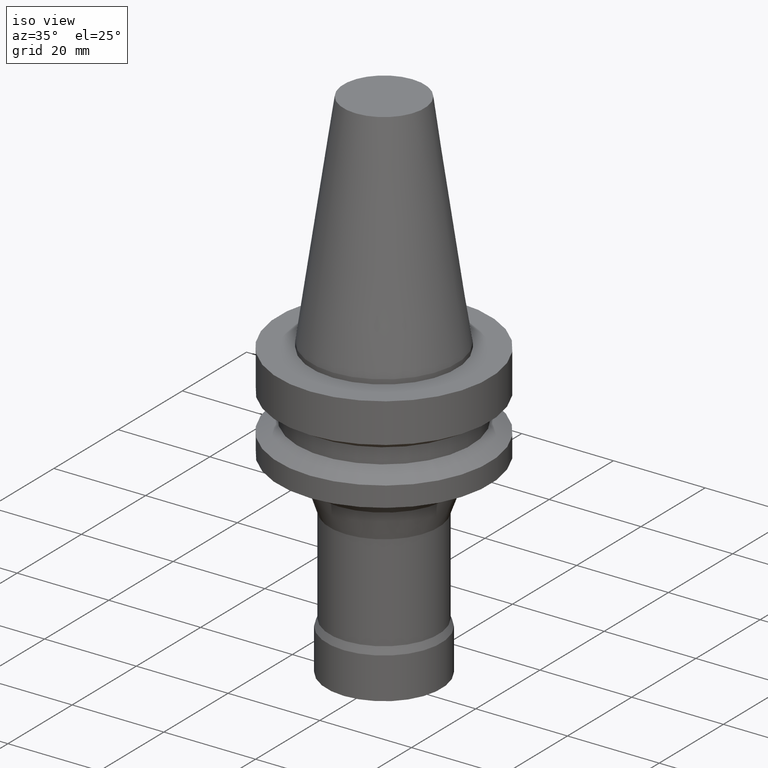
[diagram: clean part render]
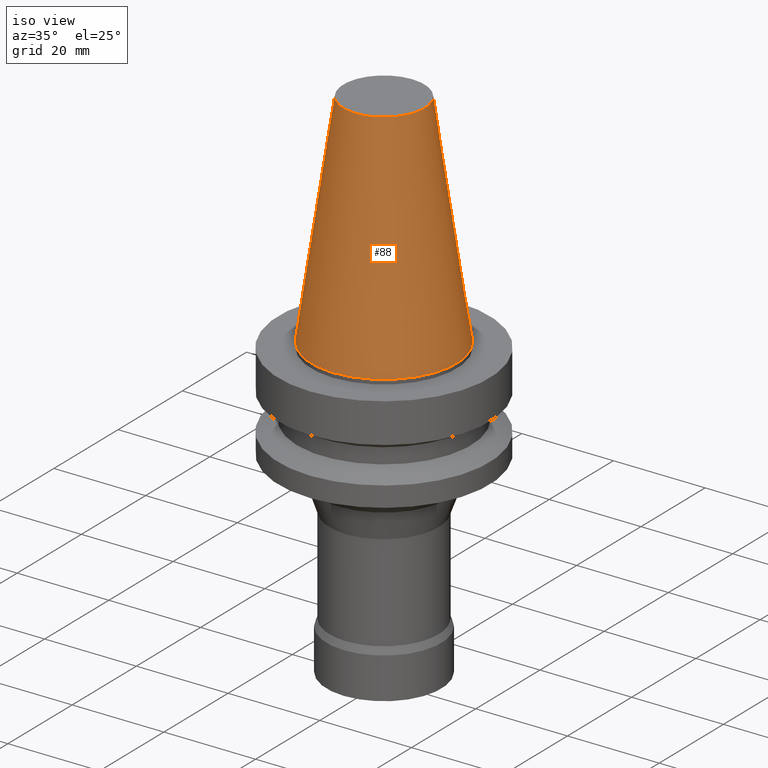
[diagram: same view with one face highlighted and labeled with its STEP entity id]
A machine part, iso view. The second image highlights one B-rep face of the part: STEP entity #88.
In plain terms, the highlighted conical surface has half-angle 8.297 deg.
Its self-contained STEP definition (entity closure, byte-faithful):
#88=ADVANCED_FACE('',(#130,#131),#132,.T.);
#130=FACE_BOUND('',#179,.T.);
#131=FACE_BOUND('',#180,.T.);
#132=CONICAL_SURFACE('',#181,12.3457500009933,0.14481587001362);
#179=EDGE_LOOP('',(#254));
#180=EDGE_LOOP('',(#255));
#181=AXIS2_PLACEMENT_3D('',#256,#257,#258);
#254=ORIENTED_EDGE('',*,*,#287,.F.);
#255=ORIENTED_EDGE('',*,*,#286,.T.);
#256=CARTESIAN_POINT('',(-1.4818226269683E-015,-2.96364525393659E-015,24.2));
#257=DIRECTION('',(6.12323399573677E-017,1.22464679914735E-016,-1.0));
#258=DIRECTION('',(-1.23259516440783E-032,1.0,1.22464679914735E-016));
#286=EDGE_CURVE('',#314,#314,#315,.T.);
#287=EDGE_CURVE('',#316,#316,#317,.T.);
#314=VERTEX_POINT('',#346);
#315=CIRCLE('',#347,8.81650000198667);
#316=VERTEX_POINT('',#348);
#317=CIRCLE('',#349,15.875);
#346=CARTESIAN_POINT('',(-2.96364525393659E-015,8.81650000198666,48.4));
#347=AXIS2_PLACEMENT_3D('',#390,#391,#392);
#348=CARTESIAN_POINT('',(2.39407461153262E-031,15.875,-5.16130056395458E-015));
#349=AXIS2_PLACEMENT_3D('',#393,#394,#395);
#390=CARTESIAN_POINT('',(-2.96364525393659E-015,-5.92729050787319E-015,48.4));
#391=DIRECTION('',(6.12323399573676E-017,1.22464679914735E-016,-1.0));
#392=DIRECTION('',(-1.23259516440783E-032,1.0,1.22464679914735E-016));
#393=CARTESIAN_POINT('',(4.35081943503005E-031,8.7016388700601E-031,-7.105427357601E-015));
#394=DIRECTION('',(6.12323399573677E-017,1.22464679914735E-016,-1.0));
#395=DIRECTION('',(-1.23259516440783E-032,1.0,1.22464679914735E-016));